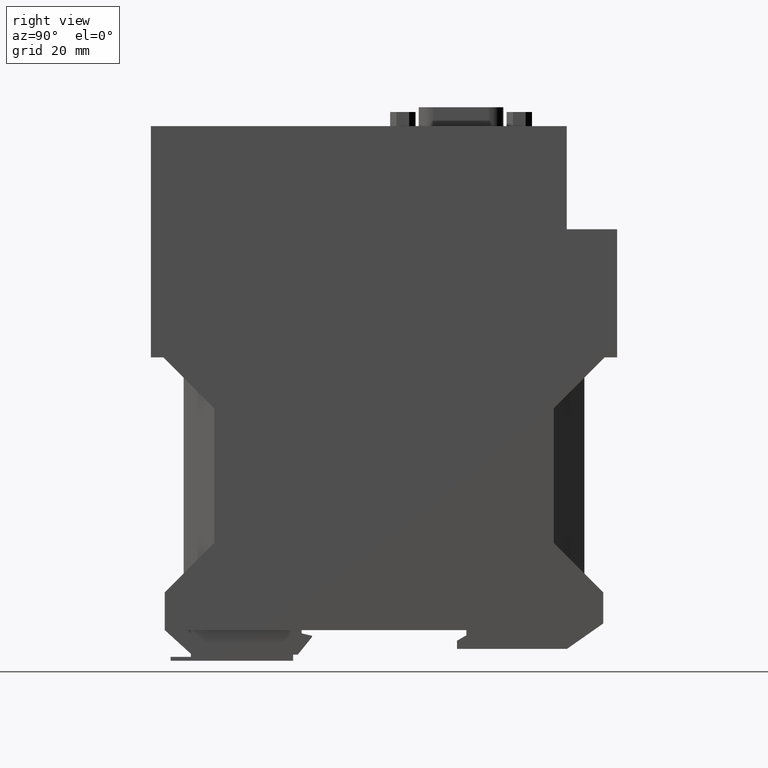
[diagram: clean part render]
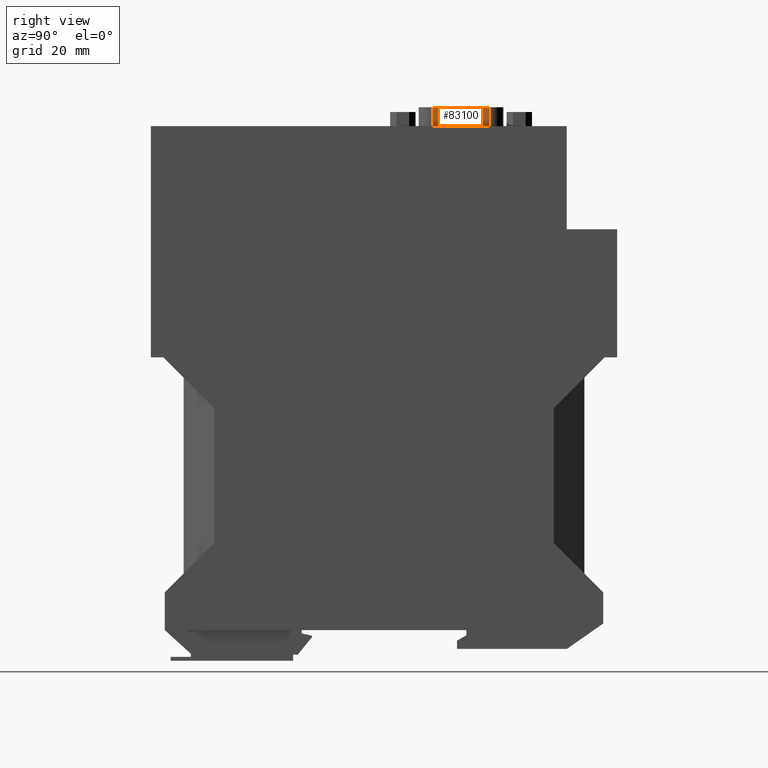
[diagram: same view with one face highlighted and labeled with its STEP entity id]
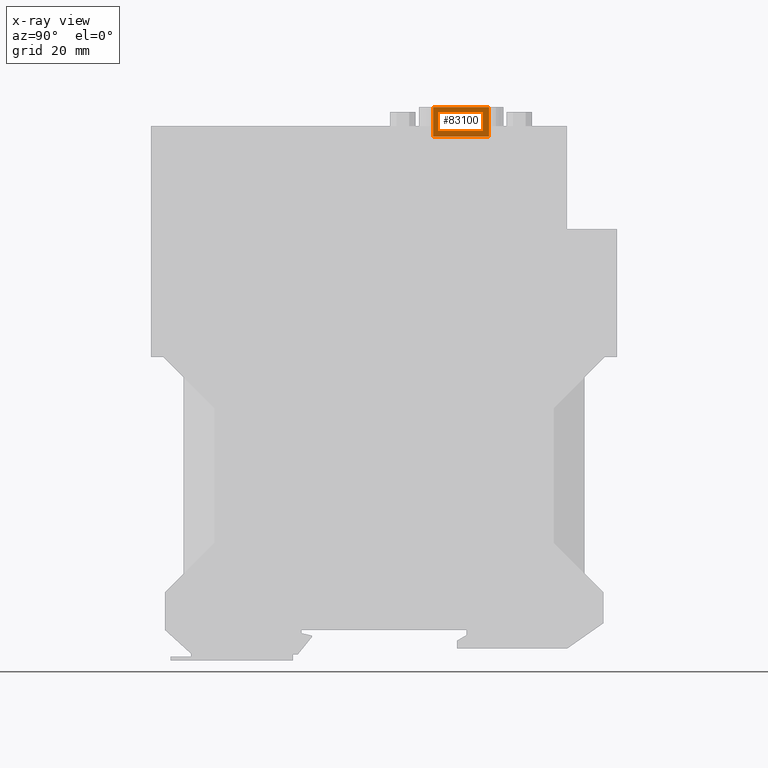
[diagram: x-ray of the same camera — body ghosted, the highlighted face saturated]
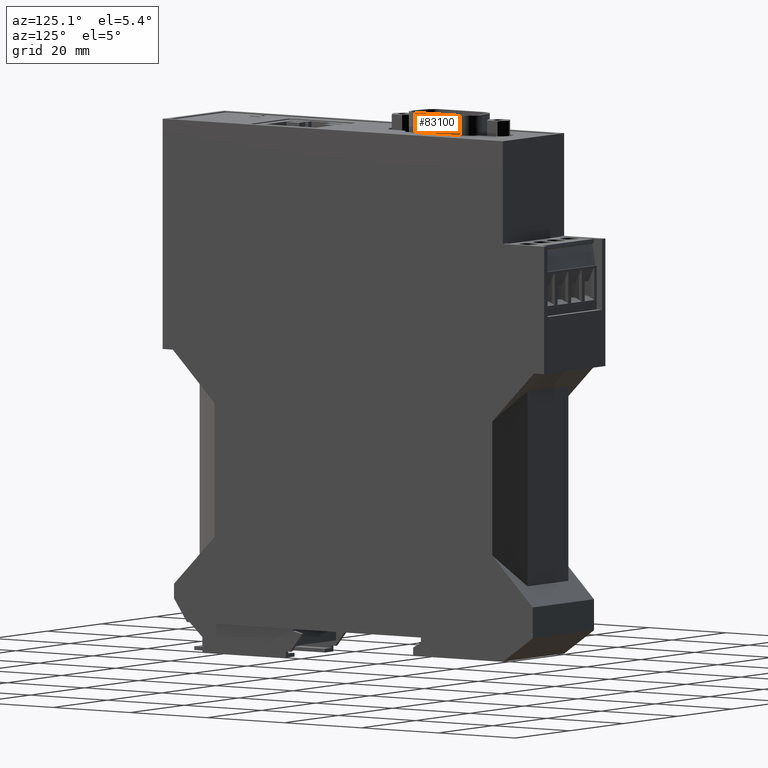
[diagram: same view with one face highlighted and labeled with its STEP entity id]
A machine part, right view. The second image highlights one B-rep face of the part: STEP entity #83100.
The next image is the same camera in x-ray: the body ghosted, the highlighted face saturated — about 0% of this face is hidden behind the body in this view.
A second angle (auxiliary view) of the same face is appended — the face is thin or edge-on in the first view.
In plain terms, the highlighted planar face has unit normal (-1, -0, 0).
Its self-contained STEP definition (entity closure, byte-faithful):
#71050=CARTESIAN_POINT('',(-7.0778000146033,104.799999999983,
14.6997559606323));
#71060=VERTEX_POINT('',#71050);
#71090=CARTESIAN_POINT('',(24.,104.79999999996,14.699755960632));
#71100=DIRECTION('',(1.,-7.38964445188328E-13,-8.61887528884398E-15));
#71110=VECTOR('',#71100,1.);
#71120=LINE('',#71090,#71110);
#71130=CARTESIAN_POINT('',(4.80219998539669,104.799999999974,
14.6997559606322));
#71140=VERTEX_POINT('',#71130);
#71150=EDGE_CURVE('',#71060,#71140,#71120,.T.);
#82800=CARTESIAN_POINT('',(4.80219998539663,117.804799999951,
14.6997559606338));
#82810=DIRECTION('',(-8.61887528874877E-15,1.2878153174413E-13,-1.));
#82820=DIRECTION('',(1.,4.90822482988326E-15,-8.61887528874813E-15));
#82830=AXIS2_PLACEMENT_3D('',#82800,#82810,#82820);
#82840=PLANE('',#82830);
#82850=CARTESIAN_POINT('',(-7.07780001460336,117.804799999951,
14.6997559606339));
#82860=DIRECTION('',(4.90822482988215E-15,-1.,-1.2878153174413E-13));
#82870=VECTOR('',#82860,1.);
#82880=LINE('',#82850,#82870);
#82890=CARTESIAN_POINT('',(-7.07780001460332,110.999999999972,
14.6997559606331));
#82900=VERTEX_POINT('',#82890);
#82910=EDGE_CURVE('',#82900,#71060,#82880,.T.);
#82920=ORIENTED_EDGE('',*,*,#82910,.T.);
#82930=CARTESIAN_POINT('',(24.,110.999999999972,14.6997559606327));
#82940=DIRECTION('',(-1.,0.,8.61887528874877E-15));
#82950=VECTOR('',#82940,1.);
#82960=LINE('',#82930,#82950);
#82970=CARTESIAN_POINT('',(4.80219998539667,110.999999999972,
14.699755960633));
#82980=VERTEX_POINT('',#82970);
#82990=EDGE_CURVE('',#82980,#82900,#82960,.T.);
#83000=ORIENTED_EDGE('',*,*,#82990,.T.);
#83010=CARTESIAN_POINT('',(4.80219998539663,117.804799999951,
14.6997559606338));
#83020=DIRECTION('',(4.90822482988215E-15,-1.,-1.2878153174413E-13));
#83030=VECTOR('',#83020,1.);
#83040=LINE('',#83010,#83030);
#83050=EDGE_CURVE('',#82980,#71140,#83040,.T.);
#83060=ORIENTED_EDGE('',*,*,#83050,.F.);
#83070=ORIENTED_EDGE('',*,*,#71150,.T.);
#83080=EDGE_LOOP('',(#83070,#83060,#83000,#82920));
#83090=FACE_OUTER_BOUND('',#83080,.T.);
#83100=ADVANCED_FACE('',(#83090),#82840,.F.);